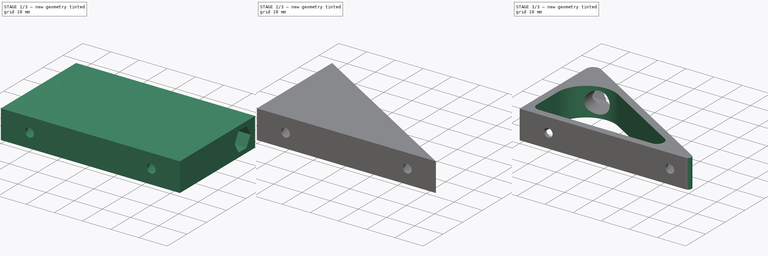
[diagram: build sequence overview — one tinted view per stage of 3, left to right]
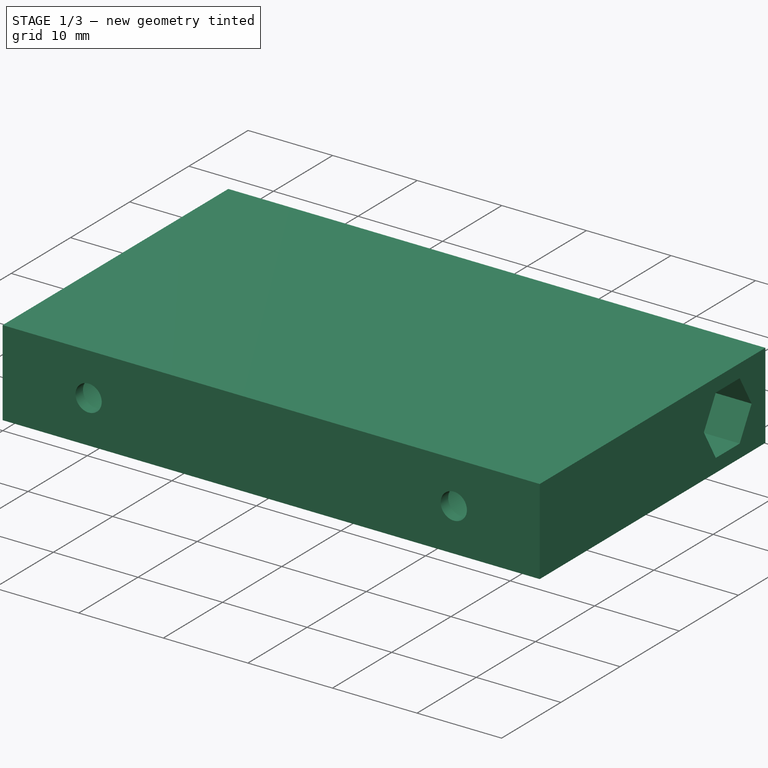
[diagram: stage 1 of 3 — iso view after this stage's code; geometry added in this stage tinted green]
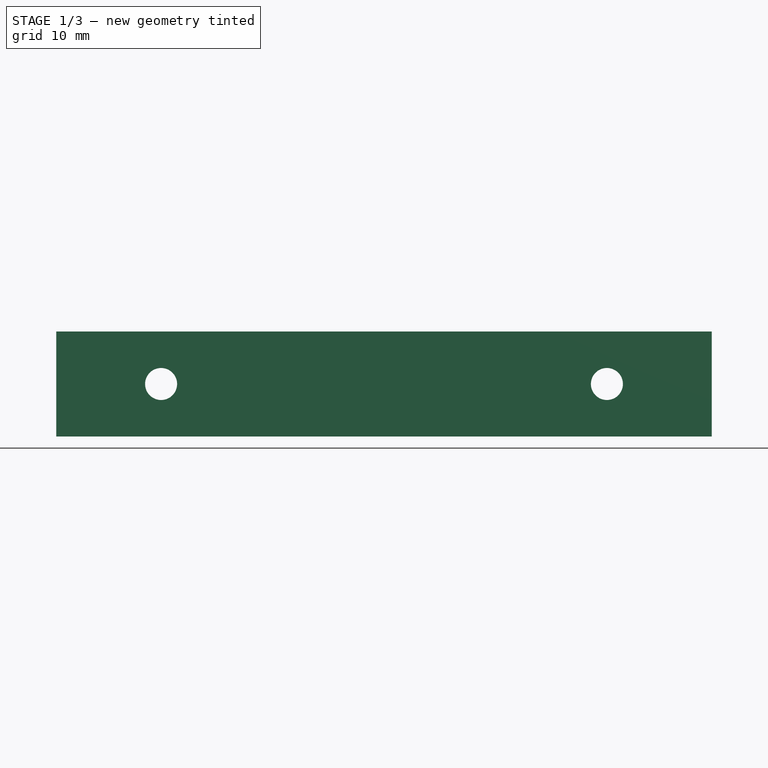
[diagram: stage 1 of 3 — front view after this stage's code; geometry added in this stage tinted green]
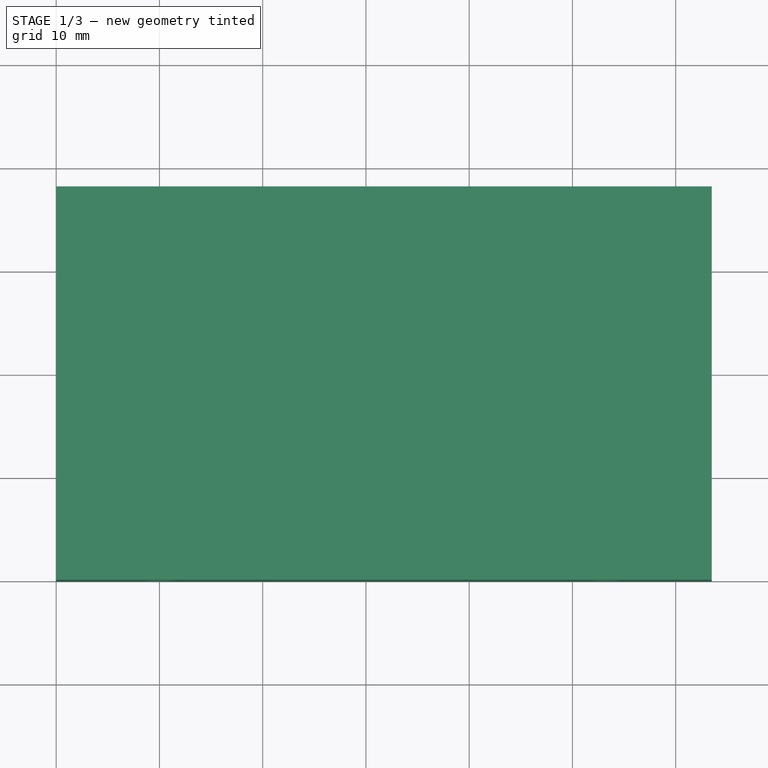
[diagram: stage 1 of 3 — top view after this stage's code; geometry added in this stage tinted green]
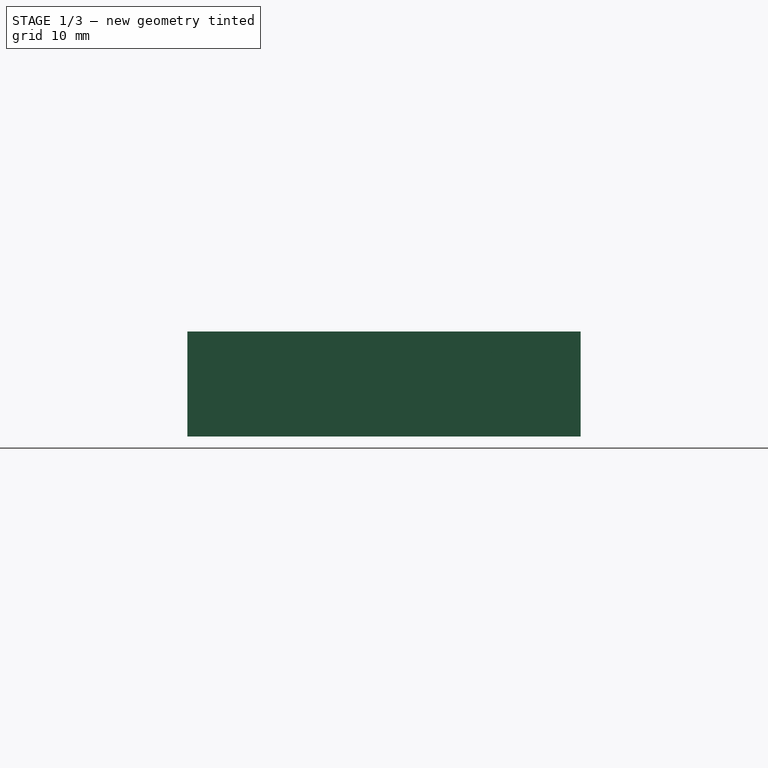
[diagram: stage 1 of 3 — right view after this stage's code; geometry added in this stage tinted green]
FCSTD DOCUMENT  (FreeCAD 0.18.4R)
Label: bracket
License: All rights reserved
LicenseURL: http://en.wikipedia.org/wiki/All_rights_reserved
objects: Sketcher::SketchObject×6, PartDesign::Pocket×3, PartDesign::Hole×2, PartDesign::Fillet×2, PartDesign::Pad×1, PartDesign::Body×1
note: 21 computed .brp shape members not serialized (recipe doc carries the construction recipe); baked Part::Feature solids carry a one-line shape summary decoded from their .brp

FEATURE [Sketcher::SketchObject] Sketch
  MapMode = 5
  Support = -> [XY_Plane]
  sketch-geometry (4):
    g0: LineSegment StartX=0 StartY=38.1 StartZ=0 EndX=63.5 EndY=38.1 EndZ=0
    g1: LineSegment StartX=63.5 StartY=38.1 StartZ=0 EndX=63.5 EndY=0 EndZ=0
    g2: LineSegment StartX=63.5 StartY=0 StartZ=0 EndX=0 EndY=0 EndZ=0
    g3: LineSegment StartX=0 StartY=0 StartZ=0 EndX=0 EndY=38.1 EndZ=0
  constraints (11):
    c: Coincident(g0,g1)
    c: Coincident(g1,g2)
    c: Coincident(g2,g3)
    c: Coincident(g3,g0)
    c: Horizontal(g0)
    c: Horizontal(g2)
    c: Vertical(g1)
    c: Vertical(g3)
    c: Coincident(g2,g-1)
    c: Distance(g2) = 63.5
    c: DistanceY(g3,g3) = 38.1
FEATURE [PartDesign::Pad] Pad
  Length = 10.16
  Length2 = 100.076
  Profile = -> Sketch
  Type = 0
FEATURE [Sketcher::SketchObject] Sketch001
  MapMode = 5
  Placement = pos=(0,38.1,0) rot=(0,0.707107,0.707107;3.14159rad)
  Support = -> [Pad]
  sketch-geometry (2):
    g0: Circle CenterX=-53.34 CenterY=5.08 CenterZ=0 NormalX=0 NormalY=0 NormalZ=1 AngleXU=0 Radius=1.5875
    g1: Circle CenterX=-10.16 CenterY=5.08 CenterZ=0 NormalX=0 NormalY=0 NormalZ=1 AngleXU=0 Radius=1.5875
  constraints (6):
    c: Horizontal(g0,g1)
    c: Equal(g1,g0)
    c: Radius(g1) = 1.5875
    c: Distance(g0,g1) = 43.18
    c: DistanceY(g-1,g1) = 5.08
    c: DistanceX(g1,g-1) = 10.16
FEATURE [PartDesign::Hole] Hole
  BaseFeature = -> Pad
  Depth = 24.892
  DepthType = 1
  Diameter = 3.1
  DrillPoint = 1
  DrillPointAngle = 118
  HoleCutCountersinkAngle = 82
  HoleCutDepth = 36.83
  HoleCutDiameter = 7.62
  HoleCutType = 1
  ModelActualThread = false
  Profile = -> Sketch001
  Tapered = false
  TaperedAngle = 90
  ThreadAngle = 0
  ThreadClass = 0
  ThreadCutOffInner = 0
  ThreadCutOffOuter = 0
  ThreadDirection = 0
  ThreadFit = 0
  ThreadPitch = 0
  ThreadSize = 3
  ThreadType = 3
  Threaded = false
FEATURE [Sketcher::SketchObject] Sketch002
  MapMode = 5
  Placement = pos=(63.5,0,0) rot=(0.57735,0.57735,0.57735;2.0944rad)
  Support = -> [Hole]
  sketch-geometry (7):
    g0: LineSegment StartX=35.7828 StartY=5.08 StartZ=0 EndX=33.7664 EndY=8.5725 EndZ=0
    g1: LineSegment StartX=33.7664 StartY=8.5725 StartZ=0 EndX=29.7336 EndY=8.5725 EndZ=0
    g2: LineSegment StartX=29.7336 StartY=8.5725 StartZ=0 EndX=27.7172 EndY=5.08 EndZ=0
    g3: LineSegment StartX=27.7172 StartY=5.08 StartZ=0 EndX=29.7336 EndY=1.5875 EndZ=0
    g4: LineSegment StartX=29.7336 StartY=1.5875 StartZ=0 EndX=33.7664 EndY=1.5875 EndZ=0
    g5: LineSegment StartX=33.7664 StartY=1.5875 StartZ=0 EndX=35.7828 EndY=5.08 EndZ=0
    g6: Circle [constr] CenterX=31.75 CenterY=5.08 CenterZ=0 NormalX=0 NormalY=0 NormalZ=1 AngleXU=0 Radius=4.03279
  constraints (17):
    c: Coincident(g0,g1)
    c: Coincident(g1,g2)
    c: Coincident(g2,g3)
    c: Coincident(g3,g4)
    c: Coincident(g4,g5)
    c: Coincident(g5,g0)
    c: Equal(g0, g1-g5) x5
    c: PointOnObject(g0,g6)
    c: PointOnObject(g1,g6)
    c: PointOnObject(g2,g6)
    c: PointOnObject(g3,g6)
    c: PointOnObject(g4,g6)
    c: PointOnObject(g5,g6)
    c: Horizontal(g4)
    c: DistanceY(g-1,g6) = 5.08
    c: DistanceX(g-1,g6) = 31.75
    c: Distance(g0,g4) = 6.985
FEATURE [PartDesign::Pocket] Pocket
  BaseFeature = -> Hole
  Length = 62.23
  Length2 = 100.076
  Profile = -> Sketch002
  Type = 0
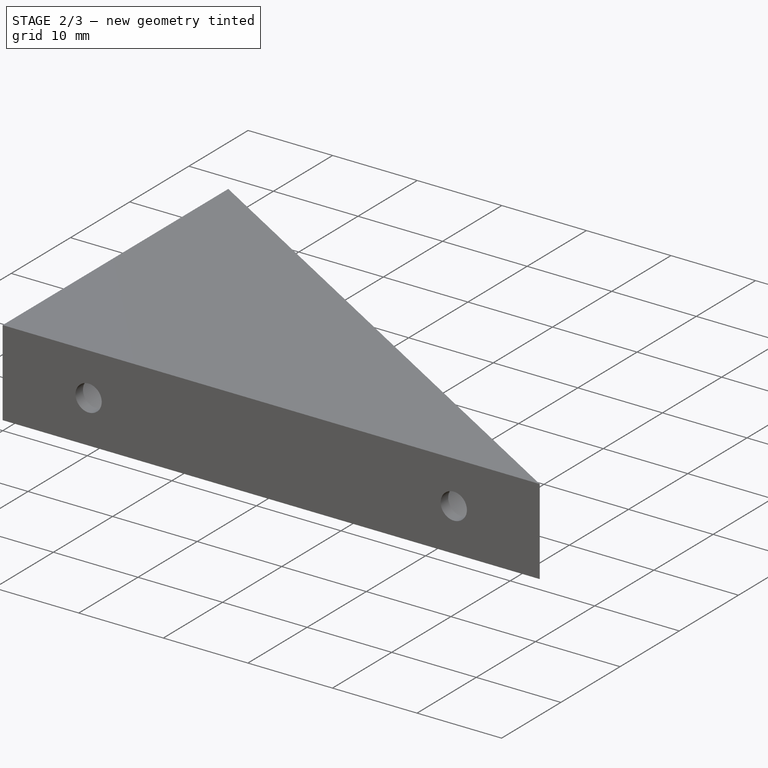
[diagram: stage 2 of 3 — iso view after this stage's code; geometry added in this stage tinted green]
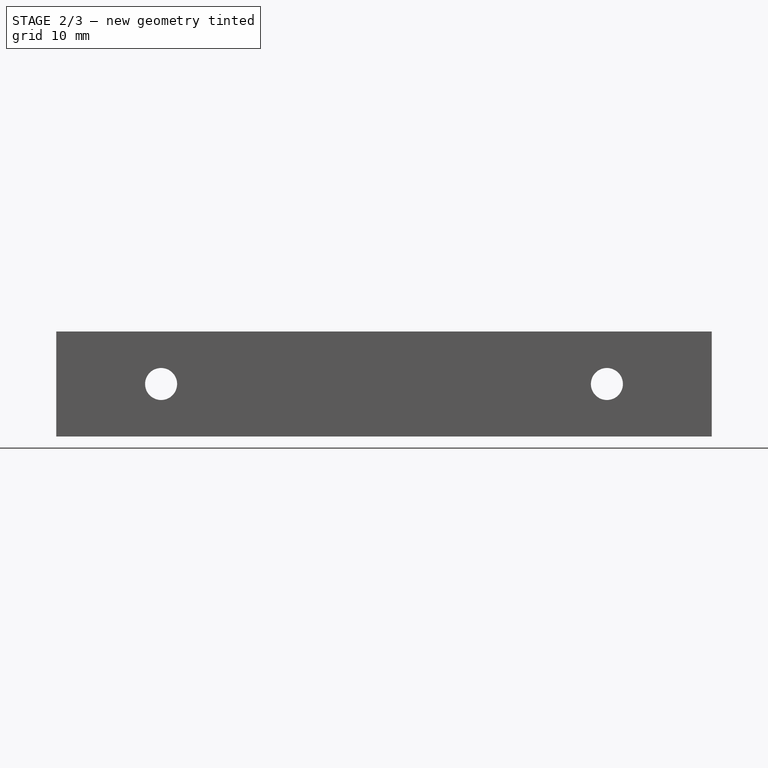
[diagram: stage 2 of 3 — front view after this stage's code; geometry added in this stage tinted green]
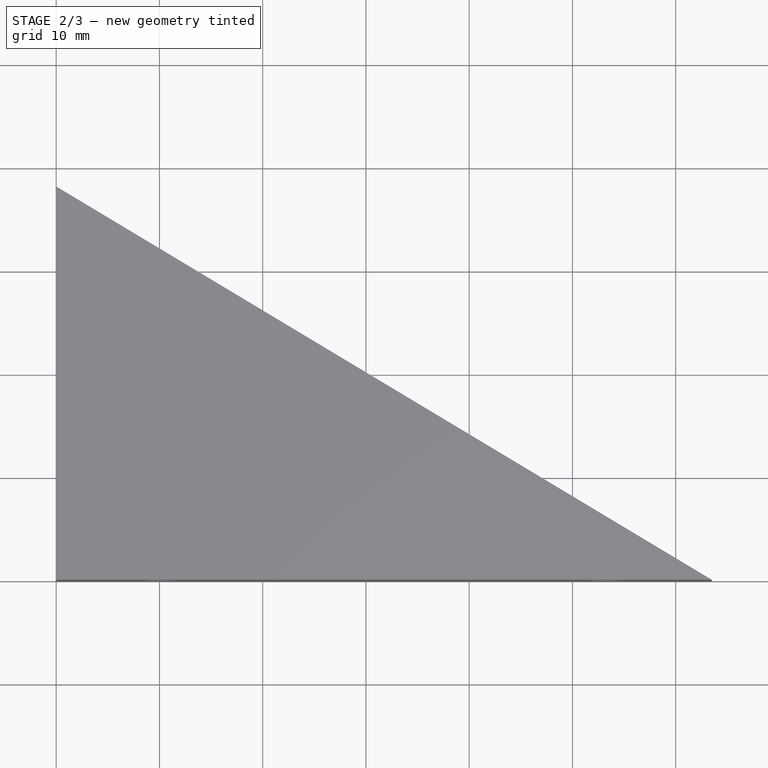
[diagram: stage 2 of 3 — top view after this stage's code; geometry added in this stage tinted green]
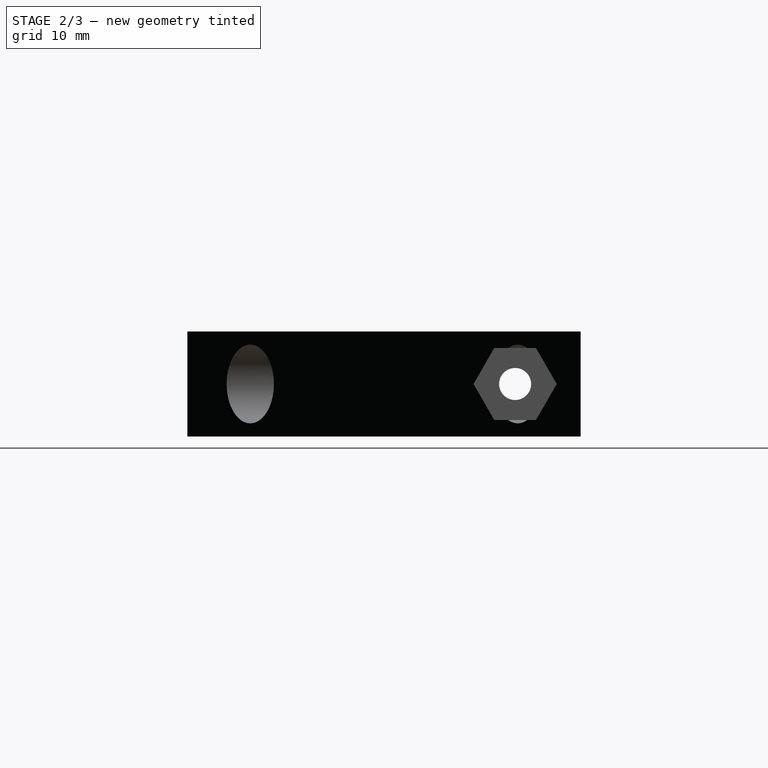
[diagram: stage 2 of 3 — right view after this stage's code; geometry added in this stage tinted green]
FEATURE [Sketcher::SketchObject] Sketch003
  MapMode = 5
  Placement = pos=(0,0,0) rot=(0.57735,-0.57735,-0.57735;2.0944rad)
  Support = -> [Pocket]
  sketch-geometry (1):
    g0: Circle CenterX=-31.75 CenterY=5.08 CenterZ=0 NormalX=0 NormalY=0 NormalZ=1 AngleXU=0 Radius=1.5875
  constraints (3):
    c: Radius(g0) = 1.5875
    c: DistanceY(g-1,g0) = 5.08
    c: DistanceX(g0,g-1) = 31.75
FEATURE [PartDesign::Hole] Hole001
  BaseFeature = -> Pocket
  Depth = 25
  DepthType = 1
  Diameter = 3.1
  DrillPoint = 1
  DrillPointAngle = 118
  HoleCutCountersinkAngle = 82
  HoleCutDepth = 0
  HoleCutDiameter = 0
  HoleCutType = 0
  ModelActualThread = false
  Profile = -> Sketch003
  Tapered = false
  TaperedAngle = 90
  ThreadAngle = 0
  ThreadClass = 0
  ThreadCutOffInner = 0
  ThreadCutOffOuter = 0
  ThreadDirection = 0
  ThreadFit = 0
  ThreadPitch = 0
  ThreadSize = 3
  ThreadType = 3
  Threaded = false
FEATURE [Sketcher::SketchObject] Sketch004
  ExternalGeometry = -> [Hole001]
  MapMode = 5
  Placement = pos=(0,0,10.16) rot=(0,0,1;0rad)
  Support = -> [Hole001]
  sketch-geometry (3):
    g0: LineSegment StartX=0 StartY=38.1 StartZ=0 EndX=63.5 EndY=0 EndZ=0
    g1: LineSegment StartX=63.5 StartY=0 StartZ=0 EndX=63.5 EndY=38.1 EndZ=0
    g2: LineSegment StartX=63.5 StartY=38.1 StartZ=0 EndX=0 EndY=38.1 EndZ=0
  constraints (8):
    c: Vertical(g1)
    c: Horizontal(g2)
    c: Coincident(g0,g2)
    c: Coincident(g1,g2)
    c: Coincident(g0,g1)
    c: Horizontal(g1,g-1)
    c: Vertical(g2,g-1)
    c: Coincident(g1,g-3)
FEATURE [PartDesign::Pocket] Pocket001
  BaseFeature = -> Hole001
  Length = 5.08
  Length2 = 100.076
  Profile = -> Sketch004
  Type = 1
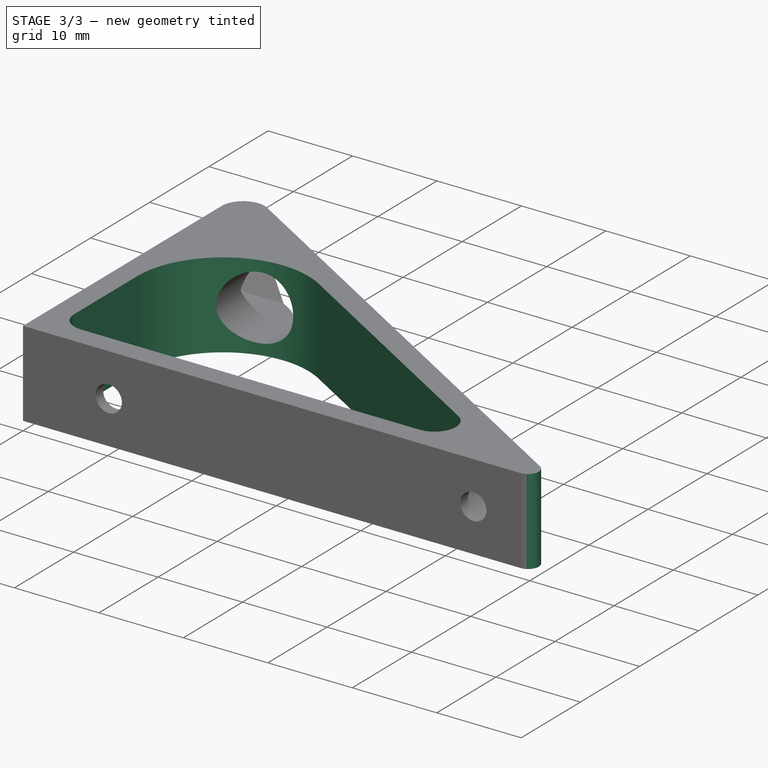
[diagram: stage 3 of 3 — iso view after this stage's code; geometry added in this stage tinted green]
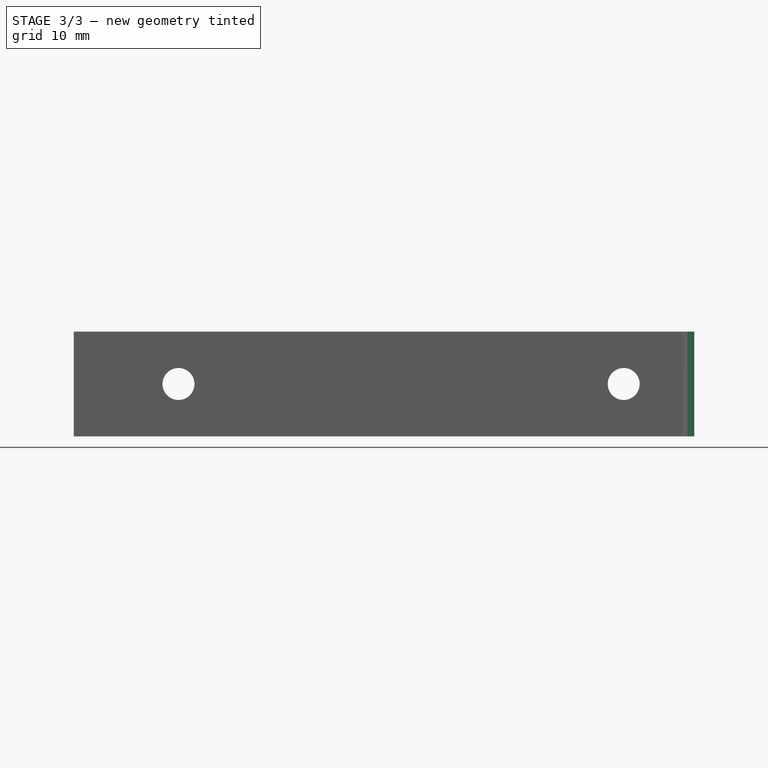
[diagram: stage 3 of 3 — front view after this stage's code; geometry added in this stage tinted green]
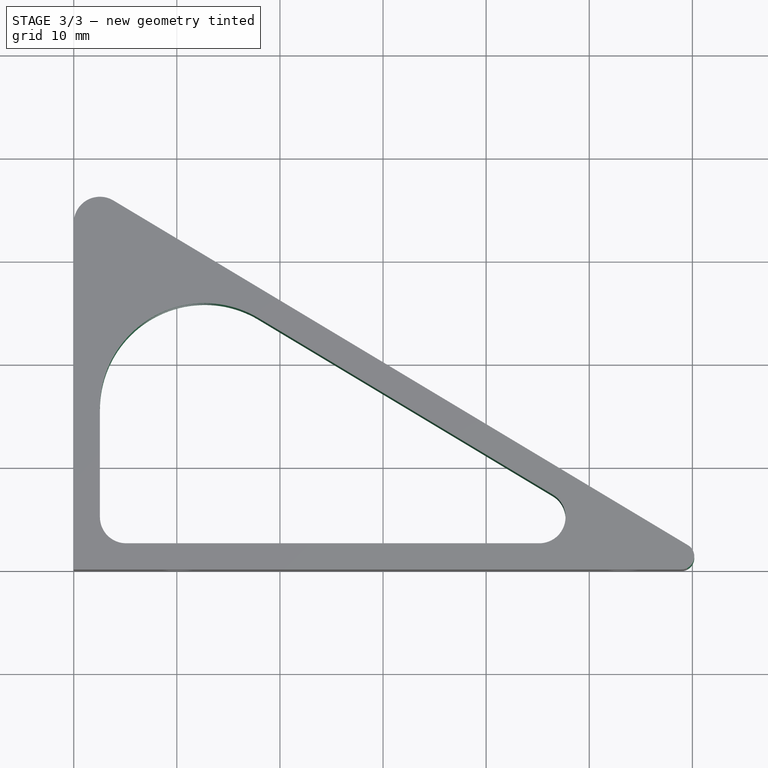
[diagram: stage 3 of 3 — top view after this stage's code; geometry added in this stage tinted green]
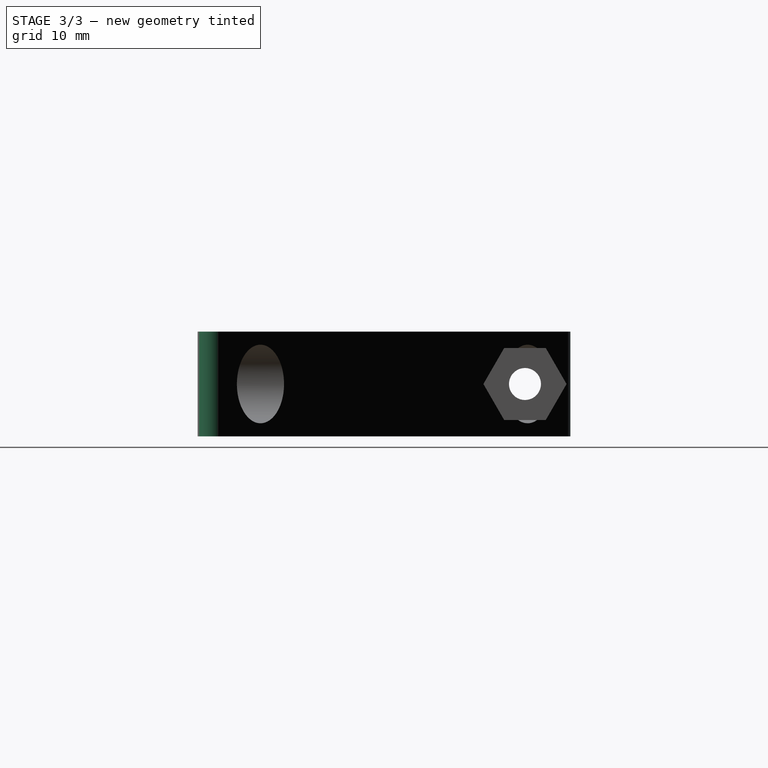
[diagram: stage 3 of 3 — right view after this stage's code; geometry added in this stage tinted green]
FEATURE [Sketcher::SketchObject] Sketch005
  ExternalGeometry = -> [Pocket001]
  MapMode = 5
  Placement = pos=(0,0,10.16) rot=(0,0,1;0rad)
  Support = -> [Pocket001]
  sketch-geometry (8):
    g0: LineSegment StartX=2.54 StartY=15.6694 StartZ=0 EndX=2.54 EndY=5.08 EndZ=0
    g1: LineSegment StartX=17.9273 StartY=24.3815 StartZ=0 EndX=46.4664 EndY=7.25803 EndZ=0
    g2: LineSegment StartX=45.1596 StartY=2.54 StartZ=0 EndX=5.08 EndY=2.54 EndZ=0
    g3: ArcOfCircle CenterX=5.08 CenterY=5.08 CenterZ=0 NormalX=0 NormalY=0 NormalZ=1 AngleXU=0 Radius=2.54 StartAngle=3.14159 EndAngle=4.71239
    g4: ArcOfCircle CenterX=12.7 CenterY=15.6694 CenterZ=0 NormalX=0 NormalY=0 NormalZ=1 AngleXU=0 Radius=10.16 StartAngle=1.03038 EndAngle=3.14159
    g5: ArcOfCircle CenterX=45.1596 CenterY=5.08 CenterZ=0 NormalX=0 NormalY=0 NormalZ=1 AngleXU=0 Radius=2.54 StartAngle=4.71239 EndAngle=7.31356
    g6: LineSegment [constr] StartX=46.4664 StartY=7.25803 StartZ=0 EndX=45.1596 EndY=5.08 EndZ=0
    g7: LineSegment [constr] StartX=17.9273 StartY=24.3815 StartZ=0 EndX=12.7 EndY=15.6694 EndZ=0
  constraints (25):
    c: Vertical(g0)
    c: Horizontal(g2)
    c: Coincident(g2,g5)
    c: Vertical(g5,g2)
    c: Coincident(g1,g5)
    c: Coincident(g1,g6)
    c: Coincident(g5,g6)
    c: Perpendicular(g1,g6)
    c: Coincident(g0,g4)
    c: Coincident(g1,g4)
    c: Horizontal(g4,g4)
    c: Coincident(g4,g7)
    c: Coincident(g1,g7)
    c: Perpendicular(g7,g1)
    c: Coincident(g0,g3)
    c: Coincident(g2,g3)
    c: Vertical(g3,g3)
    c: Horizontal(g3,g3)
    c: DistanceY(g-1,g2) = 2.54
    c: DistanceX(g-1,g0) = 2.54
    c: Parallel(g1,g-4)
    c: Distance(g1,g-4) = 2.54
    c: Radius(g4) = 10.16
    c: Radius(g3) = 2.54
    c: Radius(g5) = 2.54
FEATURE [PartDesign::Pocket] Pocket002
  BaseFeature = -> Pocket001
  Length = 5.08
  Length2 = 100.076
  Profile = -> Sketch005
  Type = 1
FEATURE [PartDesign::Fillet] Fillet
  Base = -> Pocket002 [Edge4]
  BaseFeature = -> Pocket002
  Radius = 2.54
FEATURE [PartDesign::Fillet] Fillet001
  Base = -> Fillet [Edge17]
  BaseFeature = -> Fillet
  Radius = 1.27
FEATURE [PartDesign::Body] Body
  Group = -> [Sketch,Pad,Sketch001,Hole,Sketch002,Pocket,Sketch003,Hole001,Sketch004,Pocket001,Sketch005,Pocket002,Fillet,Fillet001]
  Origin = -> Origin
  Tip = -> Fillet001
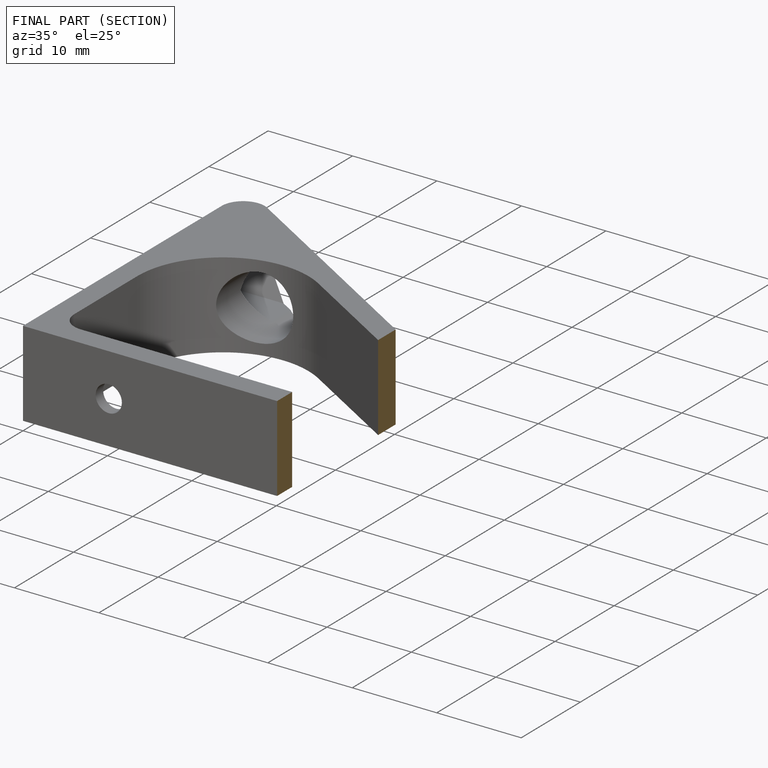
[diagram: finished part — half-section view (interior)]
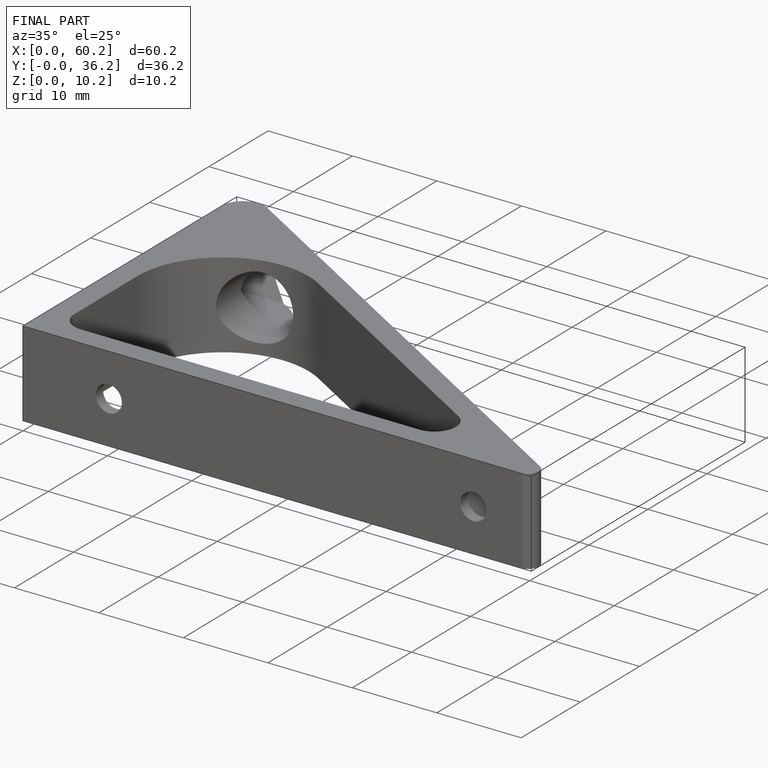
[diagram: finished part — iso view with bounding-box wireframe]
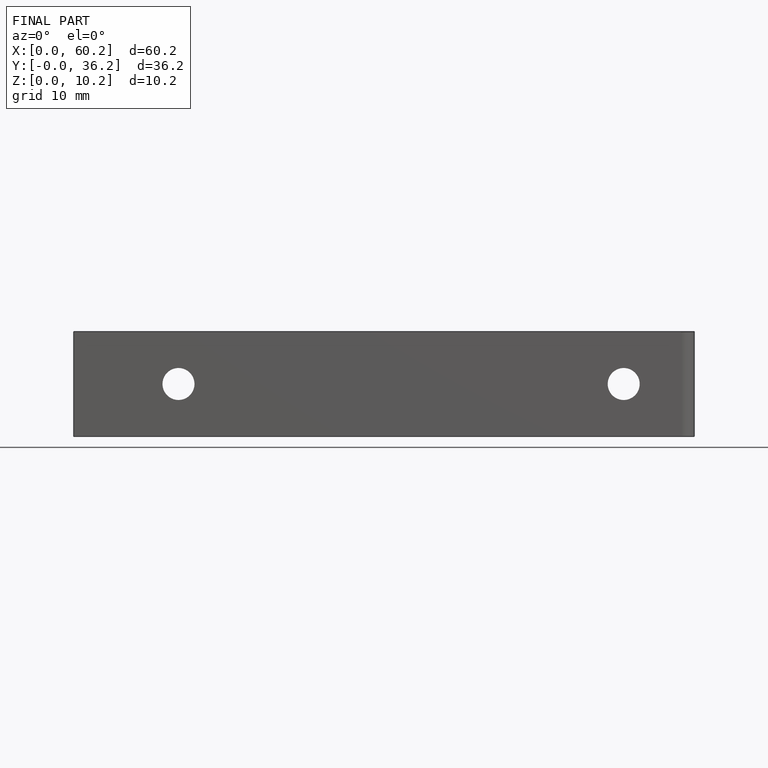
[diagram: finished part — front view with bounding-box wireframe]
